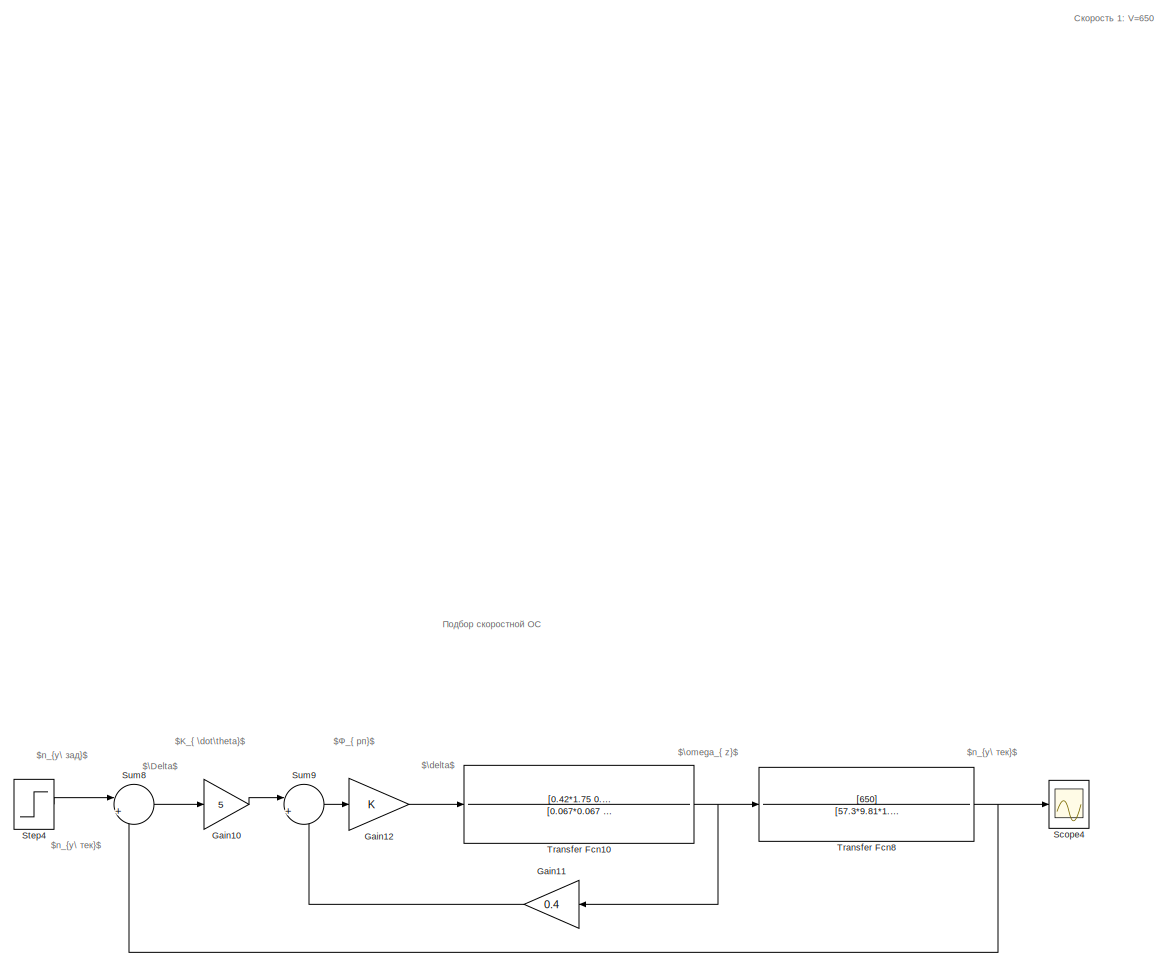
[diagram: root canvas - part 1/15, top center region]
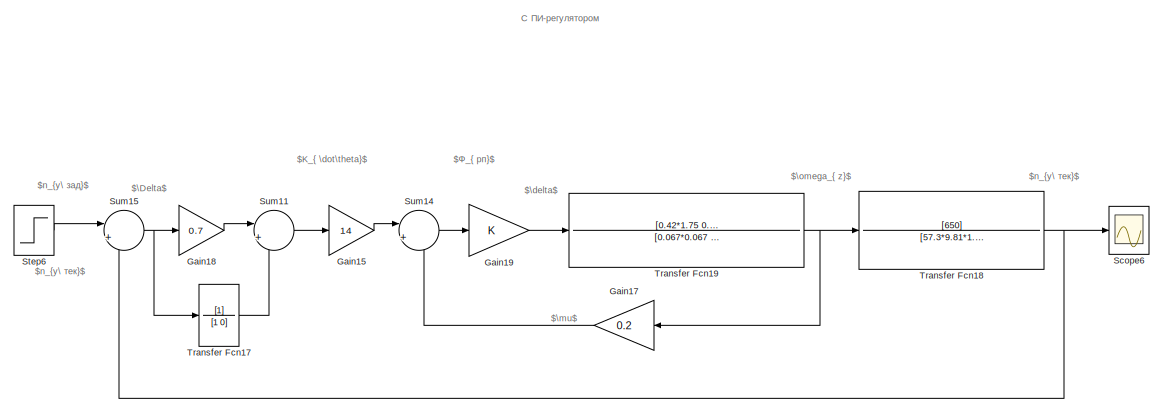
[diagram: root canvas - part 2/15, top right region]
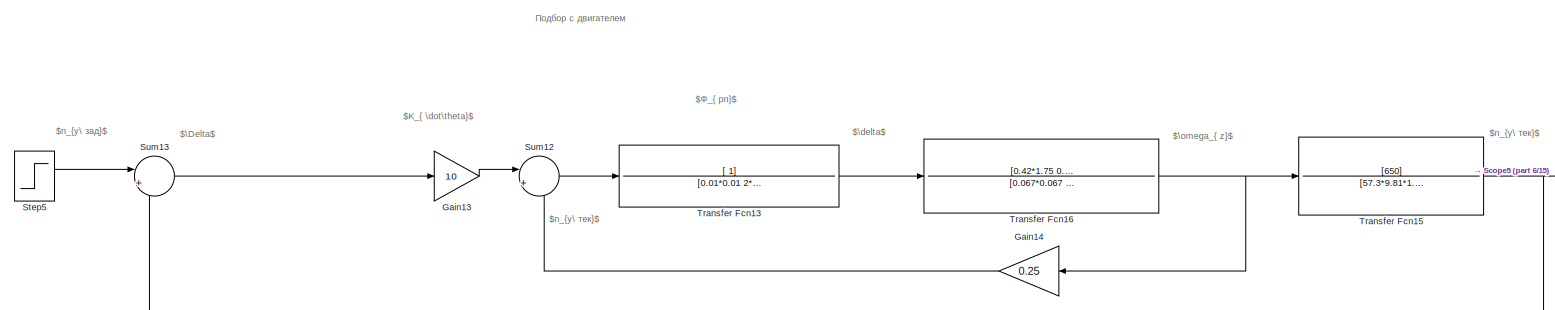
[diagram: root canvas - part 3/15, top center region]
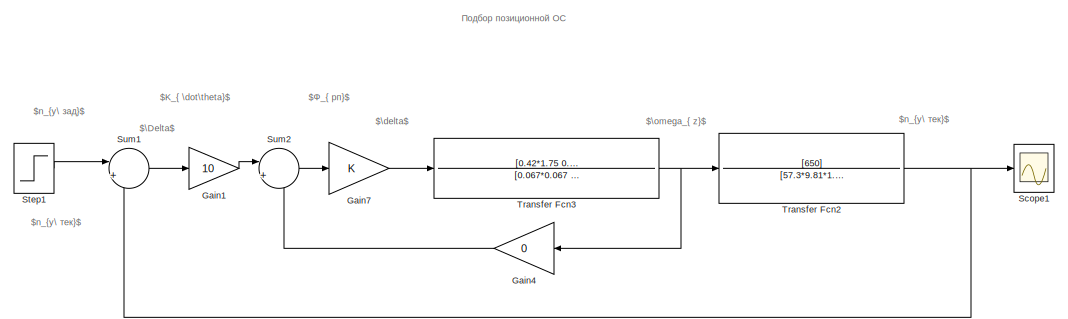
[diagram: root canvas - part 4/15, top left region]
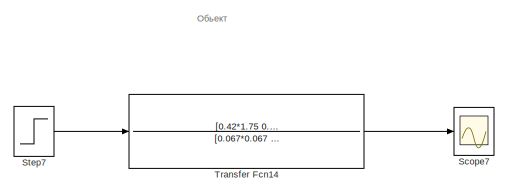
[diagram: root canvas - part 5/15, top left region]
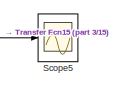
[diagram: root canvas - part 6/15, top right region]
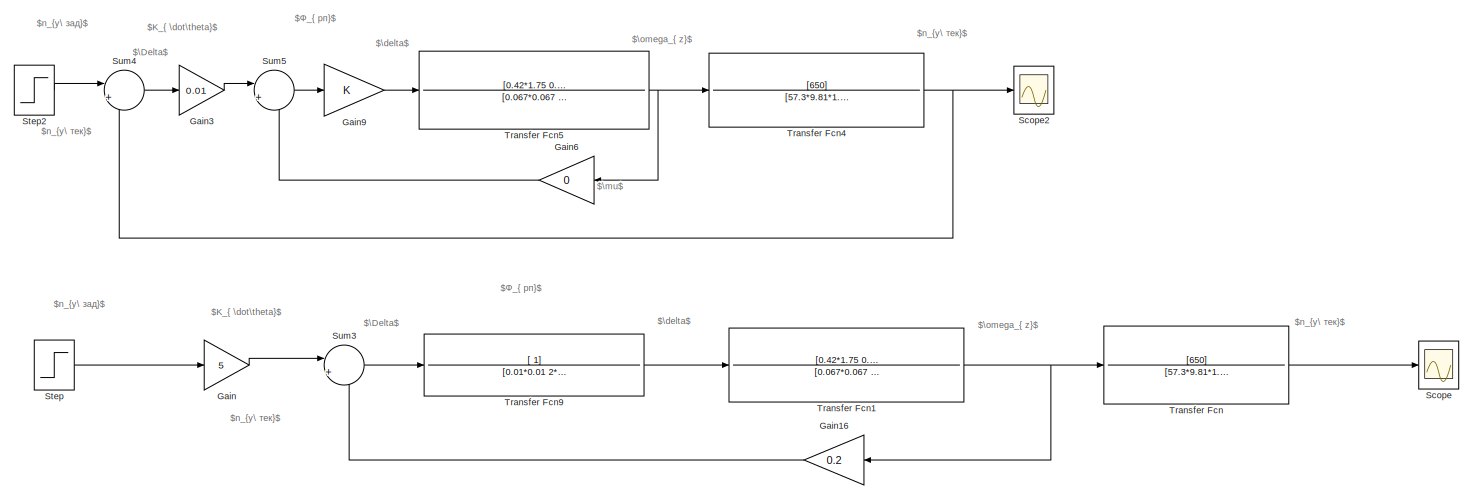
[diagram: root canvas - part 7/15, middle left region]
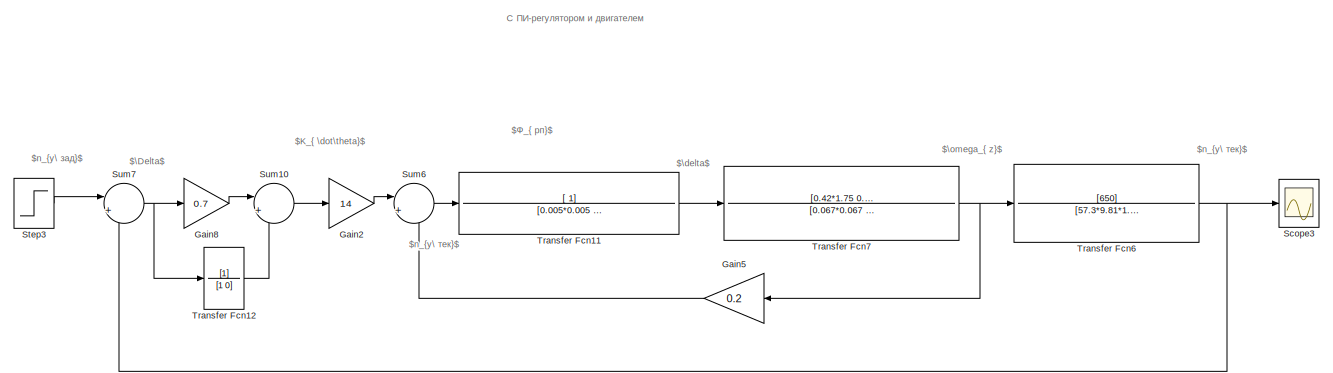
[diagram: root canvas - part 8/15, middle right region]
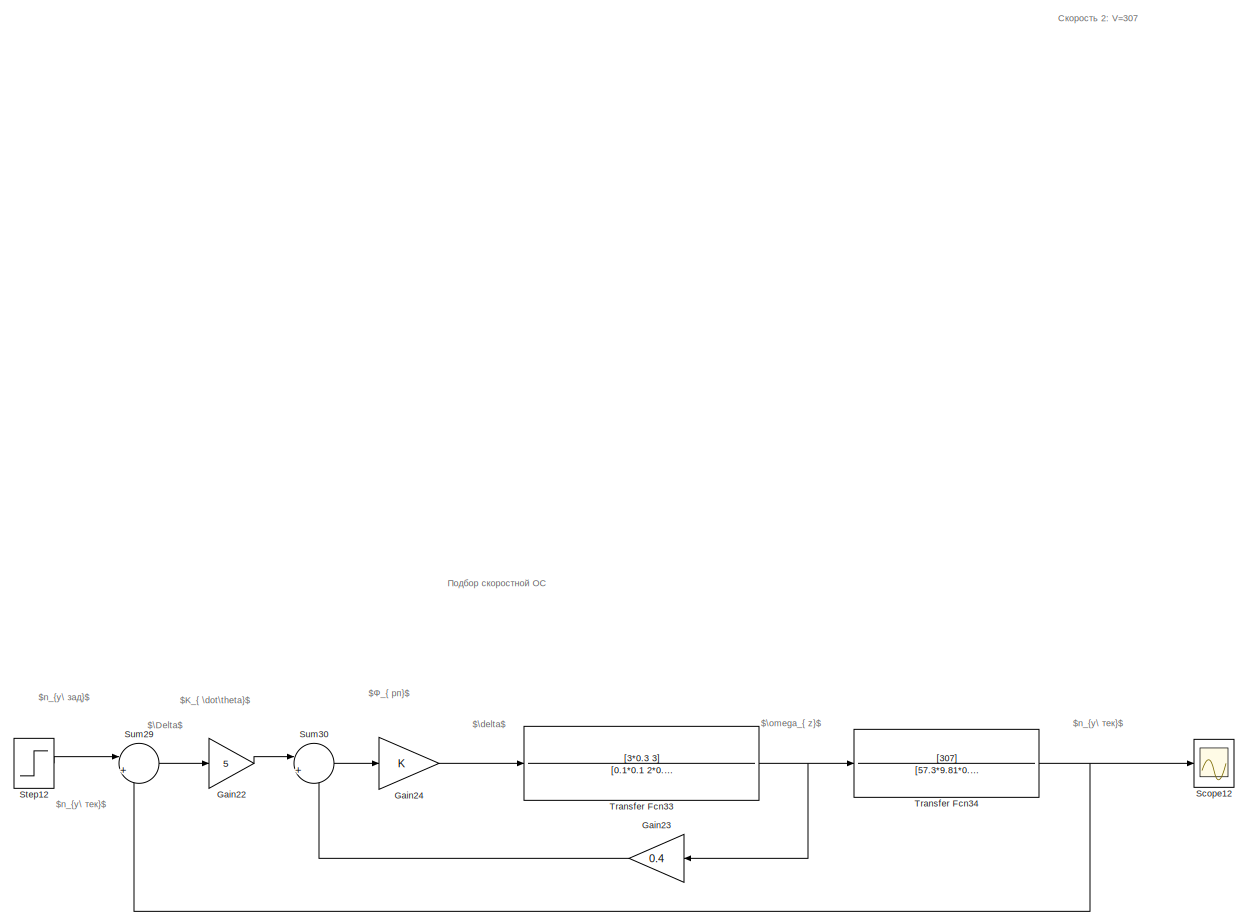
[diagram: root canvas - part 9/15, bottom center region]
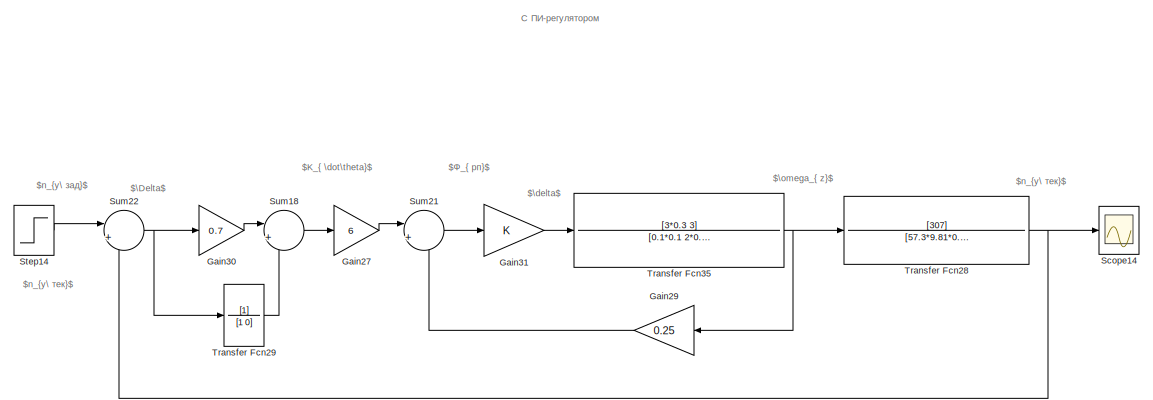
[diagram: root canvas - part 10/15, bottom right region]
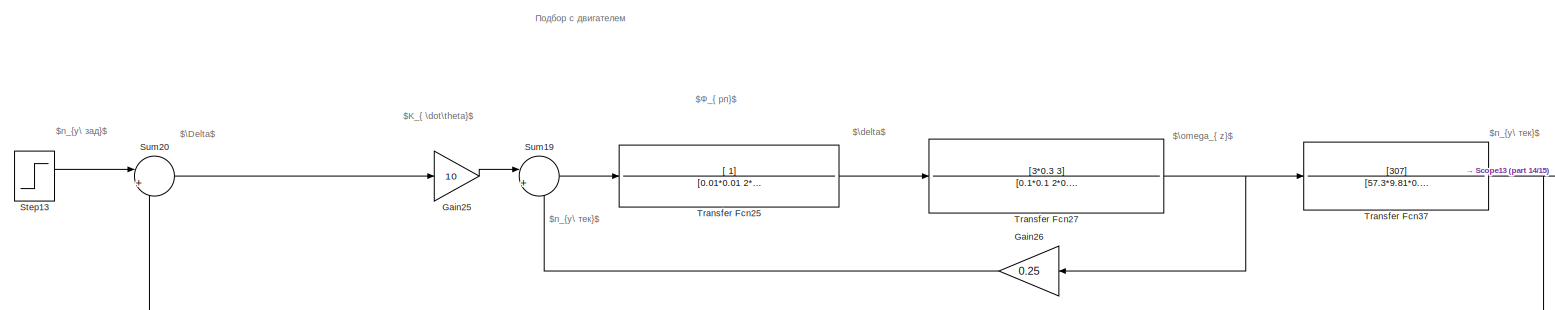
[diagram: root canvas - part 11/15, bottom right region]
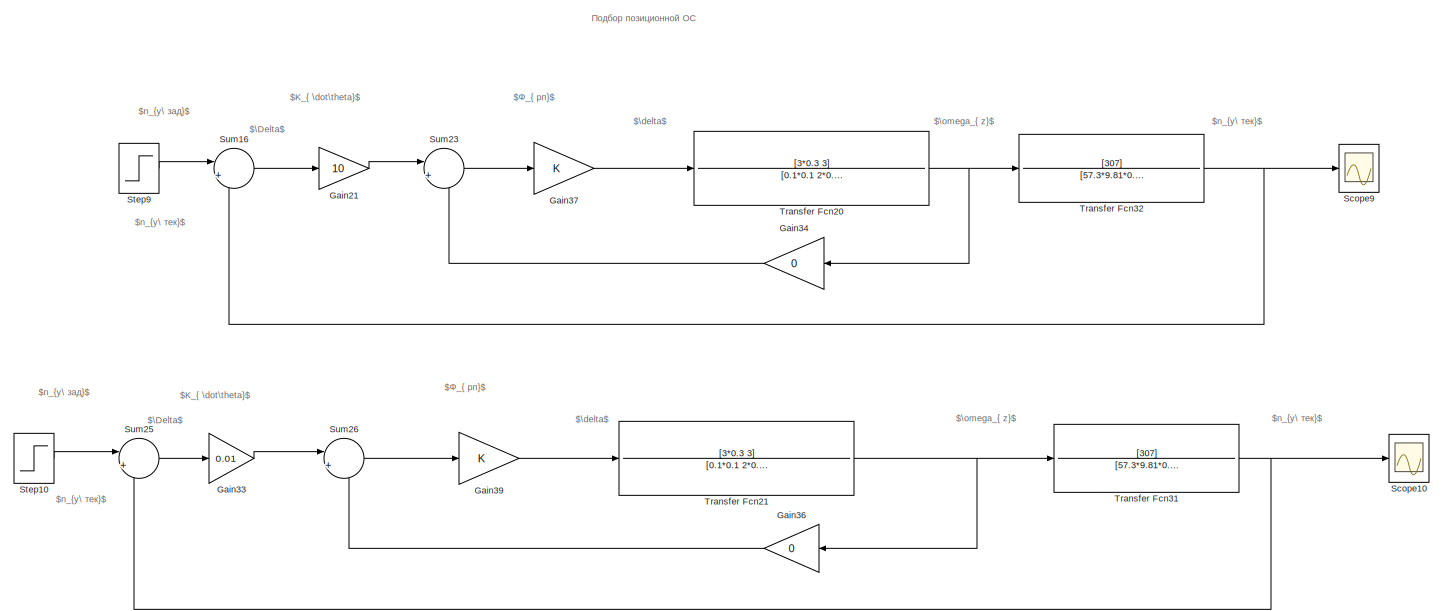
[diagram: root canvas - part 12/15, bottom left region]
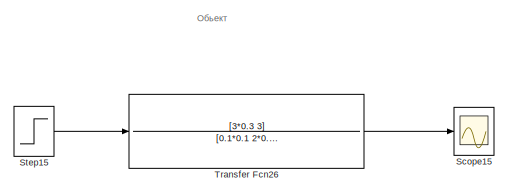
[diagram: root canvas - part 13/15, bottom left region]
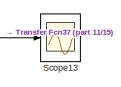
[diagram: root canvas - part 14/15, bottom right region]
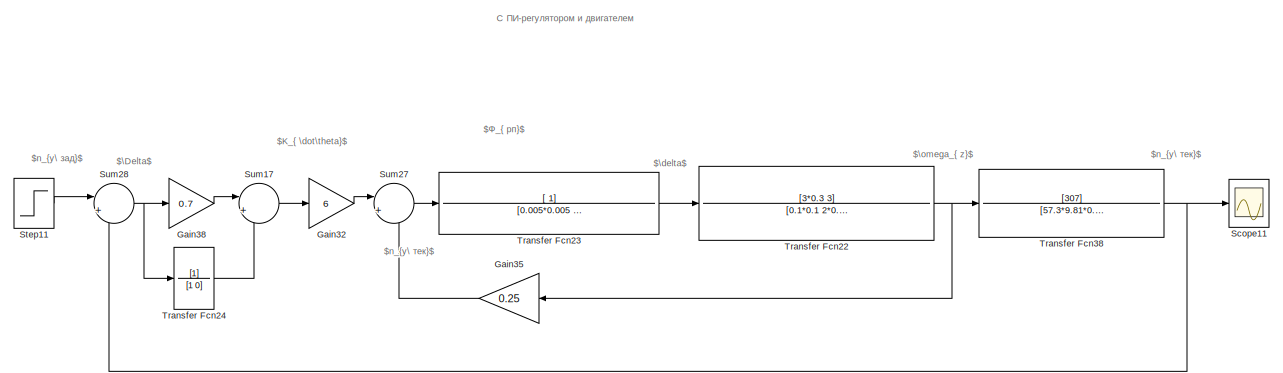
[diagram: root canvas - part 15/15, bottom right region]
MODEL slx_1e0b471c6ff1
KIND model
CONFIG AbsTol = auto
CONFIG EnableMultiTasking = off
CONFIG FixedStep = auto
CONFIG MaxStep = auto
CONFIG MinStep = auto
CONFIG RelTol = 1e-3
CONFIG SampleTimeConstraint = Unconstrained
CONFIG Solver = VariableStepAuto
CONFIG SolverName = VariableStepAuto
CONFIG StartTime = 0.0
CONFIG StopTime = 10.0
BLOCK [Gain] Gain
  Gain = 5
  OutDataTypeStr = Inherit: Inherit via internal rule
  ParamDataTypeStr = Inherit: Inherit via internal rule
  SaturateOnIntegerOverflow = off
BLOCK [Gain] Gain1
  Gain = 10
  OutDataTypeStr = Inherit: Inherit via internal rule
  ParamDataTypeStr = Inherit: Inherit via internal rule
  SaturateOnIntegerOverflow = off
BLOCK [Gain] Gain10
  Gain = 5
  OutDataTypeStr = Inherit: Inherit via internal rule
  ParamDataTypeStr = Inherit: Inherit via internal rule
  SaturateOnIntegerOverflow = off
BLOCK [Gain] Gain11
  Gain = 0.4
  OutDataTypeStr = Inherit: Inherit via internal rule
  ParamDataTypeStr = Inherit: Inherit via internal rule
  SaturateOnIntegerOverflow = off
BLOCK [Gain] Gain12
  OutDataTypeStr = Inherit: Inherit via internal rule
  ParamDataTypeStr = Inherit: Inherit via internal rule
  SaturateOnIntegerOverflow = off
BLOCK [Gain] Gain13
  Gain = 10
  OutDataTypeStr = Inherit: Inherit via internal rule
  ParamDataTypeStr = Inherit: Inherit via internal rule
  SaturateOnIntegerOverflow = off
BLOCK [Gain] Gain14
  Gain = 0.25
  OutDataTypeStr = Inherit: Inherit via internal rule
  ParamDataTypeStr = Inherit: Inherit via internal rule
  SaturateOnIntegerOverflow = off
BLOCK [Gain] Gain15
  Gain = 14
  OutDataTypeStr = Inherit: Inherit via internal rule
  ParamDataTypeStr = Inherit: Inherit via internal rule
  SaturateOnIntegerOverflow = off
BLOCK [Gain] Gain16
  Gain = 0.2
  OutDataTypeStr = Inherit: Inherit via internal rule
  ParamDataTypeStr = Inherit: Inherit via internal rule
  SaturateOnIntegerOverflow = off
BLOCK [Gain] Gain17
  Gain = 0.2
  OutDataTypeStr = Inherit: Inherit via internal rule
  ParamDataTypeStr = Inherit: Inherit via internal rule
  SaturateOnIntegerOverflow = off
BLOCK [Gain] Gain18
  Gain = 0.7
  OutDataTypeStr = Inherit: Inherit via internal rule
  ParamDataTypeStr = Inherit: Inherit via internal rule
  SaturateOnIntegerOverflow = off
BLOCK [Gain] Gain19
  OutDataTypeStr = Inherit: Inherit via internal rule
  ParamDataTypeStr = Inherit: Inherit via internal rule
  SaturateOnIntegerOverflow = off
BLOCK [Gain] Gain2
  Gain = 14
  OutDataTypeStr = Inherit: Inherit via internal rule
  ParamDataTypeStr = Inherit: Inherit via internal rule
  SaturateOnIntegerOverflow = off
BLOCK [Gain] Gain21
  Gain = 10
  OutDataTypeStr = Inherit: Inherit via internal rule
  ParamDataTypeStr = Inherit: Inherit via internal rule
  SaturateOnIntegerOverflow = off
BLOCK [Gain] Gain22
  Gain = 5
  OutDataTypeStr = Inherit: Inherit via internal rule
  ParamDataTypeStr = Inherit: Inherit via internal rule
  SaturateOnIntegerOverflow = off
BLOCK [Gain] Gain23
  Gain = 0.4
  OutDataTypeStr = Inherit: Inherit via internal rule
  ParamDataTypeStr = Inherit: Inherit via internal rule
  SaturateOnIntegerOverflow = off
BLOCK [Gain] Gain24
  OutDataTypeStr = Inherit: Inherit via internal rule
  ParamDataTypeStr = Inherit: Inherit via internal rule
  SaturateOnIntegerOverflow = off
BLOCK [Gain] Gain25
  Gain = 10
  OutDataTypeStr = Inherit: Inherit via internal rule
  ParamDataTypeStr = Inherit: Inherit via internal rule
  SaturateOnIntegerOverflow = off
BLOCK [Gain] Gain26
  Gain = 0.25
  OutDataTypeStr = Inherit: Inherit via internal rule
  ParamDataTypeStr = Inherit: Inherit via internal rule
  SaturateOnIntegerOverflow = off
BLOCK [Gain] Gain27
  Gain = 6
  OutDataTypeStr = Inherit: Inherit via internal rule
  ParamDataTypeStr = Inherit: Inherit via internal rule
  SaturateOnIntegerOverflow = off
BLOCK [Gain] Gain29
  Gain = 0.25
  OutDataTypeStr = Inherit: Inherit via internal rule
  ParamDataTypeStr = Inherit: Inherit via internal rule
  SaturateOnIntegerOverflow = off
BLOCK [Gain] Gain3
  Gain = 0.01
  OutDataTypeStr = Inherit: Inherit via internal rule
  ParamDataTypeStr = Inherit: Inherit via internal rule
  SaturateOnIntegerOverflow = off
BLOCK [Gain] Gain30
  Gain = 0.7
  OutDataTypeStr = Inherit: Inherit via internal rule
  ParamDataTypeStr = Inherit: Inherit via internal rule
  SaturateOnIntegerOverflow = off
BLOCK [Gain] Gain31
  OutDataTypeStr = Inherit: Inherit via internal rule
  ParamDataTypeStr = Inherit: Inherit via internal rule
  SaturateOnIntegerOverflow = off
BLOCK [Gain] Gain32
  Gain = 6
  OutDataTypeStr = Inherit: Inherit via internal rule
  ParamDataTypeStr = Inherit: Inherit via internal rule
  SaturateOnIntegerOverflow = off
BLOCK [Gain] Gain33
  Gain = 0.01
  OutDataTypeStr = Inherit: Inherit via internal rule
  ParamDataTypeStr = Inherit: Inherit via internal rule
  SaturateOnIntegerOverflow = off
BLOCK [Gain] Gain34
  Gain = 0
  OutDataTypeStr = Inherit: Inherit via internal rule
  ParamDataTypeStr = Inherit: Inherit via internal rule
  SaturateOnIntegerOverflow = off
BLOCK [Gain] Gain35
  Gain = 0.25
  OutDataTypeStr = Inherit: Inherit via internal rule
  ParamDataTypeStr = Inherit: Inherit via internal rule
  SaturateOnIntegerOverflow = off
BLOCK [Gain] Gain36
  Gain = 0
  OutDataTypeStr = Inherit: Inherit via internal rule
  ParamDataTypeStr = Inherit: Inherit via internal rule
  SaturateOnIntegerOverflow = off
BLOCK [Gain] Gain37
  OutDataTypeStr = Inherit: Inherit via internal rule
  ParamDataTypeStr = Inherit: Inherit via internal rule
  SaturateOnIntegerOverflow = off
BLOCK [Gain] Gain38
  Gain = 0.7
  OutDataTypeStr = Inherit: Inherit via internal rule
  ParamDataTypeStr = Inherit: Inherit via internal rule
  SaturateOnIntegerOverflow = off
BLOCK [Gain] Gain39
  OutDataTypeStr = Inherit: Inherit via internal rule
  ParamDataTypeStr = Inherit: Inherit via internal rule
  SaturateOnIntegerOverflow = off
BLOCK [Gain] Gain4
  Gain = 0
  OutDataTypeStr = Inherit: Inherit via internal rule
  ParamDataTypeStr = Inherit: Inherit via internal rule
  SaturateOnIntegerOverflow = off
BLOCK [Gain] Gain5
  Gain = 0.2
  OutDataTypeStr = Inherit: Inherit via internal rule
  ParamDataTypeStr = Inherit: Inherit via internal rule
  SaturateOnIntegerOverflow = off
BLOCK [Gain] Gain6
  Gain = 0
  OutDataTypeStr = Inherit: Inherit via internal rule
  ParamDataTypeStr = Inherit: Inherit via internal rule
  SaturateOnIntegerOverflow = off
BLOCK [Gain] Gain7
  OutDataTypeStr = Inherit: Inherit via internal rule
  ParamDataTypeStr = Inherit: Inherit via internal rule
  SaturateOnIntegerOverflow = off
BLOCK [Gain] Gain8
  Gain = 0.7
  OutDataTypeStr = Inherit: Inherit via internal rule
  ParamDataTypeStr = Inherit: Inherit via internal rule
  SaturateOnIntegerOverflow = off
BLOCK [Gain] Gain9
  OutDataTypeStr = Inherit: Inherit via internal rule
  ParamDataTypeStr = Inherit: Inherit via internal rule
  SaturateOnIntegerOverflow = off
BLOCK [Scope] Scope
  Floating = off
  NumInputPorts = 1
  Ports = [1]
  ScopeSpecificationString = Simulink.scopes.TimeScopeBlockCfg('CurrentConfiguration', extmgr.ConfigurationSet(extmgr.Configuration('Core','General UI',true,'FigureColor',[1 1 1]),extmgr.Configuration('Core','Source UI',true),extmgr.Configuration('Sources','WiredSimulink',true),extmgr.Configuration('Visuals','Time Domain',true,'SerializedDisplays',{struct('MinYLimReal','-1.4001','MaxYLimReal','12.60092','YLabelReal','','MinYL...<+1494ch>
BLOCK [Scope] Scope1
  Floating = off
  NumInputPorts = 1
  Ports = [1]
  ScopeSpecificationString = Simulink.scopes.TimeScopeBlockCfg('CurrentConfiguration', extmgr.ConfigurationSet(extmgr.Configuration('Core','General UI',true,'FigureColor',[1 1 1]),extmgr.Configuration('Core','Source UI',true),extmgr.Configuration('Sources','WiredSimulink',true,'DataLoggingVariableName','ScopeData1'),extmgr.Configuration('Visuals','Time Domain',true,'SerializedDisplays',{struct('MinYLimReal','-0.99913','MaxYLi...<+1532ch>
BLOCK [Scope] Scope10
  Floating = off
  NumInputPorts = 1
  Ports = [1]
  ScopeSpecificationString = Simulink.scopes.TimeScopeBlockCfg('CurrentConfiguration', extmgr.ConfigurationSet(extmgr.Configuration('Core','General UI',true,'FigureColor',[1 1 1]),extmgr.Configuration('Core','Source UI',true),extmgr.Configuration('Sources','WiredSimulink',true,'DataLoggingVariableName','ScopeData3'),extmgr.Configuration('Visuals','Time Domain',true,'SerializedDisplays',{struct('MinYLimReal','-0.01539','MaxYLi...<+1533ch>
BLOCK [Scope] Scope11
  Floating = off
  NumInputPorts = 1
  Ports = [1]
  ScopeSpecificationString = Simulink.scopes.TimeScopeBlockCfg('CurrentConfiguration', extmgr.ConfigurationSet(extmgr.Configuration('Core','General UI',true,'FigureColor',[1 1 1]),extmgr.Configuration('Core','Source UI',true),extmgr.Configuration('Sources','WiredSimulink',true,'DataLoggingVariableName','ScopeData4'),extmgr.Configuration('Visuals','Time Domain',true,'SerializedDisplays',{struct('MinYLimReal','-0.13484','MaxYLi...<+1533ch>
BLOCK [Scope] Scope12
  Floating = off
  NumInputPorts = 1
  Ports = [1]
  ScopeSpecificationString = Simulink.scopes.TimeScopeBlockCfg('CurrentConfiguration', extmgr.ConfigurationSet(extmgr.Configuration('Core','General UI',true,'FigureColor',[1 1 1]),extmgr.Configuration('Core','Source UI',true),extmgr.Configuration('Sources','WiredSimulink',true,'DataLoggingVariableName','ScopeData5'),extmgr.Configuration('Visuals','Time Domain',true,'SerializedDisplays',{struct('MinYLimReal','-0.0844','MaxYLim...<+1530ch>
BLOCK [Scope] Scope13
  Floating = off
  NumInputPorts = 1
  Ports = [1]
  ScopeSpecificationString = Simulink.scopes.TimeScopeBlockCfg('CurrentConfiguration', extmgr.ConfigurationSet(extmgr.Configuration('Core','General UI',true,'FigureColor',[1 1 1]),extmgr.Configuration('Core','Source UI',true),extmgr.Configuration('Sources','WiredSimulink',true,'DataLoggingVariableName','ScopeData6'),extmgr.Configuration('Visuals','Time Domain',true,'SerializedDisplays',{struct('MinYLimReal','-0.13439','MaxYLi...<+1533ch>
BLOCK [Scope] Scope14
  Floating = off
  NumInputPorts = 1
  Ports = [1]
  ScopeSpecificationString = Simulink.scopes.TimeScopeBlockCfg('CurrentConfiguration', extmgr.ConfigurationSet(extmgr.Configuration('Core','General UI',true,'FigureColor',[1 1 1]),extmgr.Configuration('Core','Source UI',true),extmgr.Configuration('Sources','WiredSimulink',true,'DataLoggingVariableName','ScopeData7'),extmgr.Configuration('Visuals','Time Domain',true,'SerializedDisplays',{struct('MinYLimReal','-0.12751','MaxYLi...<+1533ch>
BLOCK [Scope] Scope15
  Floating = off
  NumInputPorts = 1
  Ports = [1]
  ScopeSpecificationString = Simulink.scopes.TimeScopeBlockCfg('CurrentConfiguration', extmgr.ConfigurationSet(extmgr.Configuration('Core','General UI',true,'FigureColor',[1 1 1]),extmgr.Configuration('Core','Source UI',true),extmgr.Configuration('Sources','WiredSimulink',true,'DataLoggingVariableName','ScopeData8'),extmgr.Configuration('Visuals','Time Domain',true,'SerializedDisplays',{struct('MinYLimReal','-10.91605','MaxYL...<+1539ch>
BLOCK [Scope] Scope2
  Floating = off
  NumInputPorts = 1
  Ports = [1]
  ScopeSpecificationString = Simulink.scopes.TimeScopeBlockCfg('CurrentConfiguration', extmgr.ConfigurationSet(extmgr.Configuration('Core','General UI',true,'FigureColor',[1 1 1]),extmgr.Configuration('Core','Source UI',true),extmgr.Configuration('Sources','WiredSimulink',true,'DataLoggingVariableName','ScopeData2'),extmgr.Configuration('Visuals','Time Domain',true,'SerializedDisplays',{struct('MinYLimReal','-0.00565','MaxYLi...<+1532ch>
BLOCK [Scope] Scope3
  Floating = off
  NumInputPorts = 1
  Ports = [1]
  ScopeSpecificationString = Simulink.scopes.TimeScopeBlockCfg('CurrentConfiguration', extmgr.ConfigurationSet(extmgr.Configuration('Core','General UI',true,'FigureColor',[1 1 1]),extmgr.Configuration('Core','Source UI',true),extmgr.Configuration('Sources','WiredSimulink',true,'DataLoggingVariableName','ScopeData1'),extmgr.Configuration('Visuals','Time Domain',true,'SerializedDisplays',{struct('MinYLimReal','-0.13388','MaxYLi...<+1532ch>
BLOCK [Scope] Scope4
  Floating = off
  NumInputPorts = 1
  Ports = [1]
  ScopeSpecificationString = Simulink.scopes.TimeScopeBlockCfg('CurrentConfiguration', extmgr.ConfigurationSet(extmgr.Configuration('Core','General UI',true,'FigureColor',[1 1 1]),extmgr.Configuration('Core','Source UI',true),extmgr.Configuration('Sources','WiredSimulink',true,'DataLoggingVariableName','ScopeData1'),extmgr.Configuration('Visuals','Time Domain',true,'SerializedDisplays',{struct('MinYLimReal','-0.0844','MaxYLim...<+1530ch>
BLOCK [Scope] Scope5
  Floating = off
  NumInputPorts = 1
  Ports = [1]
  ScopeSpecificationString = Simulink.scopes.TimeScopeBlockCfg('CurrentConfiguration', extmgr.ConfigurationSet(extmgr.Configuration('Core','General UI',true,'FigureColor',[1 1 1]),extmgr.Configuration('Core','Source UI',true),extmgr.Configuration('Sources','WiredSimulink',true,'DataLoggingVariableName','ScopeData2'),extmgr.Configuration('Visuals','Time Domain',true,'SerializedDisplays',{struct('MinYLimReal','-0.13439','MaxYLi...<+1533ch>
BLOCK [Scope] Scope6
  Floating = off
  NumInputPorts = 1
  Ports = [1]
  ScopeSpecificationString = Simulink.scopes.TimeScopeBlockCfg('CurrentConfiguration', extmgr.ConfigurationSet(extmgr.Configuration('Core','General UI',true,'FigureColor',[1 1 1]),extmgr.Configuration('Core','Source UI',true),extmgr.Configuration('Sources','WiredSimulink',true,'DataLoggingVariableName','ScopeData1'),extmgr.Configuration('Visuals','Time Domain',true,'SerializedDisplays',{struct('MinYLimReal','-0.12697','MaxYLi...<+1562ch>
BLOCK [Scope] Scope7
  Floating = off
  NumInputPorts = 1
  Ports = [1]
  ScopeSpecificationString = Simulink.scopes.TimeScopeBlockCfg('CurrentConfiguration', extmgr.ConfigurationSet(extmgr.Configuration('Core','General UI',true,'FigureColor',[1 1 1]),extmgr.Configuration('Core','Source UI',true),extmgr.Configuration('Sources','WiredSimulink',true,'DataLoggingVariableName','ScopeData2'),extmgr.Configuration('Visuals','Time Domain',true,'SerializedDisplays',{struct('MinYLimReal','-10.91605','MaxYL...<+1539ch>
BLOCK [Scope] Scope9
  Floating = off
  NumInputPorts = 1
  Ports = [1]
  ScopeSpecificationString = Simulink.scopes.TimeScopeBlockCfg('CurrentConfiguration', extmgr.ConfigurationSet(extmgr.Configuration('Core','General UI',true,'FigureColor',[1 1 1]),extmgr.Configuration('Core','Source UI',true),extmgr.Configuration('Sources','WiredSimulink',true,'DataLoggingVariableName','ScopeData10'),extmgr.Configuration('Visuals','Time Domain',true,'SerializedDisplays',{struct('MinYLimReal','-1.09474','MaxYL...<+1534ch>
BLOCK [Step] Step
  After = 5
  SampleTime = 0
BLOCK [Step] Step1
  After = 5
  SampleTime = 0
BLOCK [Step] Step10
  After = 5
  SampleTime = 0
BLOCK [Step] Step11
  SampleTime = 0
BLOCK [Step] Step12
  SampleTime = 0
BLOCK [Step] Step13
  SampleTime = 0
BLOCK [Step] Step14
  SampleTime = 0
BLOCK [Step] Step15
  SampleTime = 0
BLOCK [Step] Step2
  After = 5
  SampleTime = 0
BLOCK [Step] Step3
  SampleTime = 0
BLOCK [Step] Step4
  SampleTime = 0
BLOCK [Step] Step5
  SampleTime = 0
BLOCK [Step] Step6
  SampleTime = 0
BLOCK [Step] Step7
  SampleTime = 0
BLOCK [Step] Step9
  After = 5
  SampleTime = 0
BLOCK [Sum] Sum1
  IconShape = round
  InputSameDT = off
  Inputs = |+-
  OutDataTypeStr = Inherit: Inherit via internal rule
  Ports = [2, 1]
  SaturateOnIntegerOverflow = off
BLOCK [Sum] Sum10
  IconShape = round
  InputSameDT = off
  Inputs = |++
  OutDataTypeStr = Inherit: Inherit via internal rule
  Ports = [2, 1]
  SaturateOnIntegerOverflow = off
BLOCK [Sum] Sum11
  IconShape = round
  InputSameDT = off
  Inputs = |++
  OutDataTypeStr = Inherit: Inherit via internal rule
  Ports = [2, 1]
  SaturateOnIntegerOverflow = off
BLOCK [Sum] Sum12
  IconShape = round
  InputSameDT = off
  Inputs = |+-
  OutDataTypeStr = Inherit: Inherit via internal rule
  Ports = [2, 1]
  SaturateOnIntegerOverflow = off
BLOCK [Sum] Sum13
  IconShape = round
  InputSameDT = off
  Inputs = |+-
  OutDataTypeStr = Inherit: Inherit via internal rule
  Ports = [2, 1]
  SaturateOnIntegerOverflow = off
BLOCK [Sum] Sum14
  IconShape = round
  InputSameDT = off
  Inputs = |+-
  OutDataTypeStr = Inherit: Inherit via internal rule
  Ports = [2, 1]
  SaturateOnIntegerOverflow = off
BLOCK [Sum] Sum15
  IconShape = round
  InputSameDT = off
  Inputs = |+-
  OutDataTypeStr = Inherit: Inherit via internal rule
  Ports = [2, 1]
  SaturateOnIntegerOverflow = off
BLOCK [Sum] Sum16
  IconShape = round
  InputSameDT = off
  Inputs = |+-
  OutDataTypeStr = Inherit: Inherit via internal rule
  Ports = [2, 1]
  SaturateOnIntegerOverflow = off
BLOCK [Sum] Sum17
  IconShape = round
  InputSameDT = off
  Inputs = |++
  OutDataTypeStr = Inherit: Inherit via internal rule
  Ports = [2, 1]
  SaturateOnIntegerOverflow = off
BLOCK [Sum] Sum18
  IconShape = round
  InputSameDT = off
  Inputs = |++
  OutDataTypeStr = Inherit: Inherit via internal rule
  Ports = [2, 1]
  SaturateOnIntegerOverflow = off
BLOCK [Sum] Sum19
  IconShape = round
  InputSameDT = off
  Inputs = |+-
  OutDataTypeStr = Inherit: Inherit via internal rule
  Ports = [2, 1]
  SaturateOnIntegerOverflow = off
BLOCK [Sum] Sum2
  IconShape = round
  InputSameDT = off
  Inputs = |+-
  OutDataTypeStr = Inherit: Inherit via internal rule
  Ports = [2, 1]
  SaturateOnIntegerOverflow = off
BLOCK [Sum] Sum20
  IconShape = round
  InputSameDT = off
  Inputs = |+-
  OutDataTypeStr = Inherit: Inherit via internal rule
  Ports = [2, 1]
  SaturateOnIntegerOverflow = off
BLOCK [Sum] Sum21
  IconShape = round
  InputSameDT = off
  Inputs = |+-
  OutDataTypeStr = Inherit: Inherit via internal rule
  Ports = [2, 1]
  SaturateOnIntegerOverflow = off
BLOCK [Sum] Sum22
  IconShape = round
  InputSameDT = off
  Inputs = |+-
  OutDataTypeStr = Inherit: Inherit via internal rule
  Ports = [2, 1]
  SaturateOnIntegerOverflow = off
BLOCK [Sum] Sum23
  IconShape = round
  InputSameDT = off
  Inputs = |+-
  OutDataTypeStr = Inherit: Inherit via internal rule
  Ports = [2, 1]
  SaturateOnIntegerOverflow = off
BLOCK [Sum] Sum25
  IconShape = round
  InputSameDT = off
  Inputs = |+-
  OutDataTypeStr = Inherit: Inherit via internal rule
  Ports = [2, 1]
  SaturateOnIntegerOverflow = off
BLOCK [Sum] Sum26
  IconShape = round
  InputSameDT = off
  Inputs = |+-
  OutDataTypeStr = Inherit: Inherit via internal rule
  Ports = [2, 1]
  SaturateOnIntegerOverflow = off
BLOCK [Sum] Sum27
  IconShape = round
  InputSameDT = off
  Inputs = |+-
  OutDataTypeStr = Inherit: Inherit via internal rule
  Ports = [2, 1]
  SaturateOnIntegerOverflow = off
BLOCK [Sum] Sum28
  IconShape = round
  InputSameDT = off
  Inputs = |+-
  OutDataTypeStr = Inherit: Inherit via internal rule
  Ports = [2, 1]
  SaturateOnIntegerOverflow = off
BLOCK [Sum] Sum29
  IconShape = round
  InputSameDT = off
  Inputs = |+-
  OutDataTypeStr = Inherit: Inherit via internal rule
  Ports = [2, 1]
  SaturateOnIntegerOverflow = off
BLOCK [Sum] Sum3
  IconShape = round
  InputSameDT = off
  Inputs = |+-
  OutDataTypeStr = Inherit: Inherit via internal rule
  Ports = [2, 1]
  SaturateOnIntegerOverflow = off
BLOCK [Sum] Sum30
  IconShape = round
  InputSameDT = off
  Inputs = |+-
  OutDataTypeStr = Inherit: Inherit via internal rule
  Ports = [2, 1]
  SaturateOnIntegerOverflow = off
BLOCK [Sum] Sum4
  IconShape = round
  InputSameDT = off
  Inputs = |+-
  OutDataTypeStr = Inherit: Inherit via internal rule
  Ports = [2, 1]
  SaturateOnIntegerOverflow = off
BLOCK [Sum] Sum5
  IconShape = round
  InputSameDT = off
  Inputs = |+-
  OutDataTypeStr = Inherit: Inherit via internal rule
  Ports = [2, 1]
  SaturateOnIntegerOverflow = off
BLOCK [Sum] Sum6
  IconShape = round
  InputSameDT = off
  Inputs = |+-
  OutDataTypeStr = Inherit: Inherit via internal rule
  Ports = [2, 1]
  SaturateOnIntegerOverflow = off
BLOCK [Sum] Sum7
  IconShape = round
  InputSameDT = off
  Inputs = |+-
  OutDataTypeStr = Inherit: Inherit via internal rule
  Ports = [2, 1]
  SaturateOnIntegerOverflow = off
BLOCK [Sum] Sum8
  IconShape = round
  InputSameDT = off
  Inputs = |+-
  OutDataTypeStr = Inherit: Inherit via internal rule
  Ports = [2, 1]
  SaturateOnIntegerOverflow = off
BLOCK [Sum] Sum9
  IconShape = round
  InputSameDT = off
  Inputs = |+-
  OutDataTypeStr = Inherit: Inherit via internal rule
  Ports = [2, 1]
  SaturateOnIntegerOverflow = off
BLOCK [TransferFcn] Transfer Fcn
  Denominator = [57.3*9.81*1.75  57.3*9.81]
  Numerator = [650]
BLOCK [TransferFcn] Transfer Fcn1
  Denominator = [0.067*0.067 2*0.043*0.067 1]
  Numerator = [0.42*1.75 0.42]
BLOCK [TransferFcn] Transfer Fcn10
  Denominator = [0.067*0.067 2*0.043*0.067 1]
  Numerator = [0.42*1.75 0.42]
BLOCK [TransferFcn] Transfer Fcn11
  Denominator = [0.005*0.005 2*0.7*0.005 1]
  Numerator = [ 1]
BLOCK [TransferFcn] Transfer Fcn12
  Denominator = [1 0]
BLOCK [TransferFcn] Transfer Fcn13
  Denominator = [0.01*0.01 2*0.7*0.01 1]
  Numerator = [ 1]
BLOCK [TransferFcn] Transfer Fcn14
  Denominator = [0.067*0.067 2*0.043*0.067 1]
  Numerator = [0.42*1.75 0.42]
BLOCK [TransferFcn] Transfer Fcn15
  Denominator = [57.3*9.81*1.75  57.3*9.81]
  Numerator = [650]
BLOCK [TransferFcn] Transfer Fcn16
  Denominator = [0.067*0.067 2*0.043*0.067 1]
  Numerator = [0.42*1.75 0.42]
BLOCK [TransferFcn] Transfer Fcn17
  Denominator = [1 0]
BLOCK [TransferFcn] Transfer Fcn18
  Denominator = [57.3*9.81*1.75  57.3*9.81]
  Numerator = [650]
BLOCK [TransferFcn] Transfer Fcn19
  Denominator = [0.067*0.067 2*0.043*0.067 1]
  Numerator = [0.42*1.75 0.42]
BLOCK [TransferFcn] Transfer Fcn2
  Denominator = [57.3*9.81*1.75  57.3*9.81]
  Numerator = [650]
BLOCK [TransferFcn] Transfer Fcn20
  Denominator = [0.1*0.1 2*0.2*0.1 1]
  Numerator = [3*0.3 3]
BLOCK [TransferFcn] Transfer Fcn21
  Denominator = [0.1*0.1 2*0.2*0.1 1]
  Numerator = [3*0.3 3]
BLOCK [TransferFcn] Transfer Fcn22
  Denominator = [0.1*0.1 2*0.2*0.1 1]
  Numerator = [3*0.3 3]
BLOCK [TransferFcn] Transfer Fcn23
  Denominator = [0.005*0.005 2*0.7*0.005 1]
  Numerator = [ 1]
BLOCK [TransferFcn] Transfer Fcn24
  Denominator = [1 0]
BLOCK [TransferFcn] Transfer Fcn25
  Denominator = [0.01*0.01 2*0.7*0.01 1]
  Numerator = [ 1]
BLOCK [TransferFcn] Transfer Fcn26
  Denominator = [0.1*0.1 2*0.2*0.1 1]
  Numerator = [3*0.3 3]
BLOCK [TransferFcn] Transfer Fcn27
  Denominator = [0.1*0.1 2*0.2*0.1 1]
  Numerator = [3*0.3 3]
BLOCK [TransferFcn] Transfer Fcn28
  Denominator = [57.3*9.81*0.3  57.3*9.81]
  Numerator = [307]
BLOCK [TransferFcn] Transfer Fcn29
  Denominator = [1 0]
BLOCK [TransferFcn] Transfer Fcn3
  Denominator = [0.067*0.067 2*0.043*0.067 1]
  Numerator = [0.42*1.75 0.42]
BLOCK [TransferFcn] Transfer Fcn31
  Denominator = [57.3*9.81*0.3  57.3*9.81]
  Numerator = [307]
BLOCK [TransferFcn] Transfer Fcn32
  Denominator = [57.3*9.81*0.3  57.3*9.81]
  Numerator = [307]
BLOCK [TransferFcn] Transfer Fcn33
  Denominator = [0.1*0.1 2*0.2*0.1 1]
  Numerator = [3*0.3 3]
BLOCK [TransferFcn] Transfer Fcn34
  Denominator = [57.3*9.81*0.3  57.3*9.81]
  Numerator = [307]
BLOCK [TransferFcn] Transfer Fcn35
  Denominator = [0.1*0.1 2*0.2*0.1 1]
  Numerator = [3*0.3 3]
BLOCK [TransferFcn] Transfer Fcn37
  Denominator = [57.3*9.81*0.3  57.3*9.81]
  Numerator = [307]
BLOCK [TransferFcn] Transfer Fcn38
  Denominator = [57.3*9.81*0.3  57.3*9.81]
  Numerator = [307]
BLOCK [TransferFcn] Transfer Fcn4
  Denominator = [57.3*9.81*1.75  57.3*9.81]
  Numerator = [650]
BLOCK [TransferFcn] Transfer Fcn5
  Denominator = [0.067*0.067 2*0.043*0.067 1]
  Numerator = [0.42*1.75 0.42]
BLOCK [TransferFcn] Transfer Fcn6
  Denominator = [57.3*9.81*1.75  57.3*9.81]
  Numerator = [650]
BLOCK [TransferFcn] Transfer Fcn7
  Denominator = [0.067*0.067 2*0.043*0.067 1]
  Numerator = [0.42*1.75 0.42]
BLOCK [TransferFcn] Transfer Fcn8
  Denominator = [57.3*9.81*1.75  57.3*9.81]
  Numerator = [650]
BLOCK [TransferFcn] Transfer Fcn9
  Denominator = [0.01*0.01 2*0.7*0.01 1]
  Numerator = [ 1]
ANNOTATION (root): Обьект
ANNOTATION (root): Подбор позиционной ОС
ANNOTATION (root): Подбор с двигателем
ANNOTATION (root): Подбор скоростной ОС
ANNOTATION (root): С ПИ-регулятором и двигателем
ANNOTATION (root): С ПИ-регулятором
ANNOTATION (root): Скорость 1: V=650
ANNOTATION (root): Скорость 2: V=307
ANNOTATION (root): $\delta$
ANNOTATION (root): $\mu$
ANNOTATION (root): $\Delta$
ANNOTATION (root): $n_{y\ зад}$
ANNOTATION (root): $n_{y\ тек}$
ANNOTATION (root): $K_{ \dot\theta}$
ANNOTATION (root): $\omega_{ z}$
ANNOTATION (root): $Ф_{ рп}$
LINE Gain10:1 -> Sum9:1
LINE Gain11:1 -> Sum9:2
LINE Gain12:1 -> Transfer Fcn10:1
LINE Gain13:1 -> Sum12:1
LINE Gain14:1 -> Sum12:2
LINE Gain15:1 -> Sum14:1
LINE Gain16:1 -> Sum3:2
LINE Gain17:1 -> Sum14:2
LINE Gain18:1 -> Sum11:1
LINE Gain19:1 -> Transfer Fcn19:1
LINE Gain1:1 -> Sum2:1
LINE Gain21:1 -> Sum23:1
LINE Gain22:1 -> Sum30:1
LINE Gain23:1 -> Sum30:2
LINE Gain24:1 -> Transfer Fcn33:1
LINE Gain25:1 -> Sum19:1
LINE Gain26:1 -> Sum19:2
LINE Gain27:1 -> Sum21:1
LINE Gain29:1 -> Sum21:2
LINE Gain2:1 -> Sum6:1
LINE Gain30:1 -> Sum18:1
LINE Gain31:1 -> Transfer Fcn35:1
LINE Gain32:1 -> Sum27:1
LINE Gain33:1 -> Sum26:1
LINE Gain34:1 -> Sum23:2
LINE Gain35:1 -> Sum27:2
LINE Gain36:1 -> Sum26:2
LINE Gain37:1 -> Transfer Fcn20:1
LINE Gain38:1 -> Sum17:1
LINE Gain39:1 -> Transfer Fcn21:1
LINE Gain3:1 -> Sum5:1
LINE Gain4:1 -> Sum2:2
LINE Gain5:1 -> Sum6:2
LINE Gain6:1 -> Sum5:2
LINE Gain7:1 -> Transfer Fcn3:1
LINE Gain8:1 -> Sum10:1
LINE Gain9:1 -> Transfer Fcn5:1
LINE Gain:1 -> Sum3:1
LINE Step10:1 -> Sum25:1
LINE Step11:1 -> Sum28:1
LINE Step12:1 -> Sum29:1
LINE Step13:1 -> Sum20:1
LINE Step14:1 -> Sum22:1
LINE Step15:1 -> Transfer Fcn26:1
LINE Step1:1 -> Sum1:1
LINE Step2:1 -> Sum4:1
LINE Step3:1 -> Sum7:1
LINE Step4:1 -> Sum8:1
LINE Step5:1 -> Sum13:1
LINE Step6:1 -> Sum15:1
LINE Step7:1 -> Transfer Fcn14:1
LINE Step9:1 -> Sum16:1
LINE Step:1 -> Gain:1
LINE Sum10:1 -> Gain2:1
LINE Sum11:1 -> Gain15:1
LINE Sum12:1 -> Transfer Fcn13:1
LINE Sum13:1 -> Gain13:1
LINE Sum14:1 -> Gain19:1
NET Sum15:1 -> Gain18:1, Transfer Fcn17:1
LINE Sum16:1 -> Gain21:1
LINE Sum17:1 -> Gain32:1
LINE Sum18:1 -> Gain27:1
LINE Sum19:1 -> Transfer Fcn25:1
LINE Sum1:1 -> Gain1:1
LINE Sum20:1 -> Gain25:1
LINE Sum21:1 -> Gain31:1
NET Sum22:1 -> Gain30:1, Transfer Fcn29:1
LINE Sum23:1 -> Gain37:1
LINE Sum25:1 -> Gain33:1
LINE Sum26:1 -> Gain39:1
LINE Sum27:1 -> Transfer Fcn23:1
NET Sum28:1 -> Gain38:1, Transfer Fcn24:1
LINE Sum29:1 -> Gain22:1
LINE Sum2:1 -> Gain7:1
LINE Sum30:1 -> Gain24:1
LINE Sum3:1 -> Transfer Fcn9:1
LINE Sum4:1 -> Gain3:1
LINE Sum5:1 -> Gain9:1
LINE Sum6:1 -> Transfer Fcn11:1
NET Sum7:1 -> Gain8:1, Transfer Fcn12:1
LINE Sum8:1 -> Gain10:1
LINE Sum9:1 -> Gain12:1
NET Transfer Fcn10:1 -> Gain11:1, Transfer Fcn8:1
LINE Transfer Fcn11:1 -> Transfer Fcn7:1
LINE Transfer Fcn12:1 -> Sum10:2
LINE Transfer Fcn13:1 -> Transfer Fcn16:1
LINE Transfer Fcn14:1 -> Scope7:1
NET Transfer Fcn15:1 -> Scope5:1, Sum13:2
NET Transfer Fcn16:1 -> Gain14:1, Transfer Fcn15:1
LINE Transfer Fcn17:1 -> Sum11:2
NET Transfer Fcn18:1 -> Scope6:1, Sum15:2
NET Transfer Fcn19:1 -> Gain17:1, Transfer Fcn18:1
NET Transfer Fcn1:1 -> Gain16:1, Transfer Fcn:1
NET Transfer Fcn20:1 -> Gain34:1, Transfer Fcn32:1
NET Transfer Fcn21:1 -> Gain36:1, Transfer Fcn31:1
NET Transfer Fcn22:1 -> Gain35:1, Transfer Fcn38:1
LINE Transfer Fcn23:1 -> Transfer Fcn22:1
LINE Transfer Fcn24:1 -> Sum17:2
LINE Transfer Fcn25:1 -> Transfer Fcn27:1
LINE Transfer Fcn26:1 -> Scope15:1
NET Transfer Fcn27:1 -> Gain26:1, Transfer Fcn37:1
NET Transfer Fcn28:1 -> Scope14:1, Sum22:2
LINE Transfer Fcn29:1 -> Sum18:2
NET Transfer Fcn2:1 -> Scope1:1, Sum1:2
NET Transfer Fcn31:1 -> Scope10:1, Sum25:2
NET Transfer Fcn32:1 -> Scope9:1, Sum16:2
NET Transfer Fcn33:1 -> Gain23:1, Transfer Fcn34:1
NET Transfer Fcn34:1 -> Scope12:1, Sum29:2
NET Transfer Fcn35:1 -> Gain29:1, Transfer Fcn28:1
NET Transfer Fcn37:1 -> Scope13:1, Sum20:2
NET Transfer Fcn38:1 -> Scope11:1, Sum28:2
NET Transfer Fcn3:1 -> Gain4:1, Transfer Fcn2:1
NET Transfer Fcn4:1 -> Scope2:1, Sum4:2
NET Transfer Fcn5:1 -> Gain6:1, Transfer Fcn4:1
NET Transfer Fcn6:1 -> Scope3:1, Sum7:2
NET Transfer Fcn7:1 -> Gain5:1, Transfer Fcn6:1
NET Transfer Fcn8:1 -> Scope4:1, Sum8:2
LINE Transfer Fcn9:1 -> Transfer Fcn1:1
LINE Transfer Fcn:1 -> Scope:1
note: NET lines group one-source signal fan-out (src -> all destinations, sorted); 1:1 wires keep LINE
